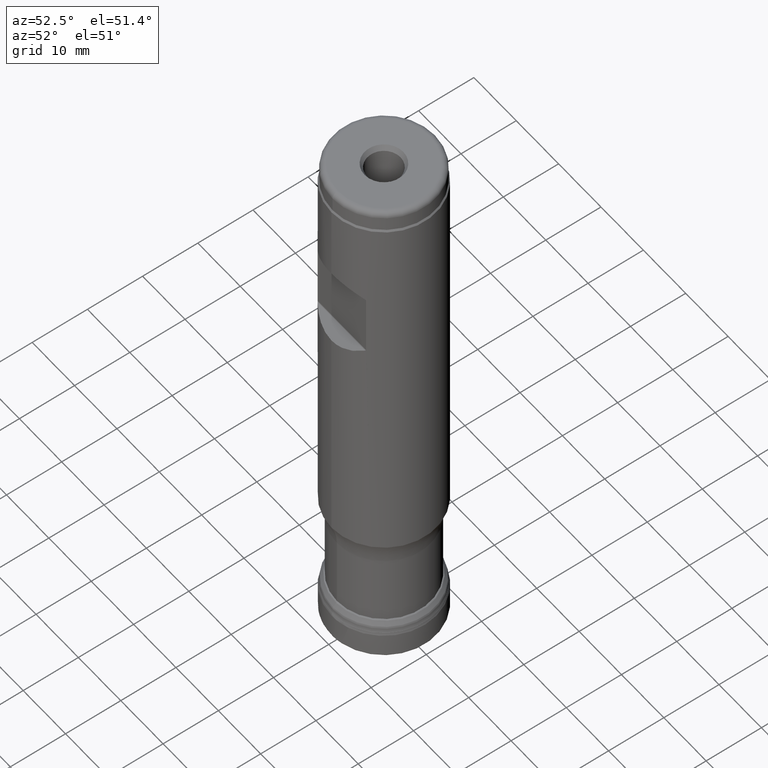
[diagram: clean part render]
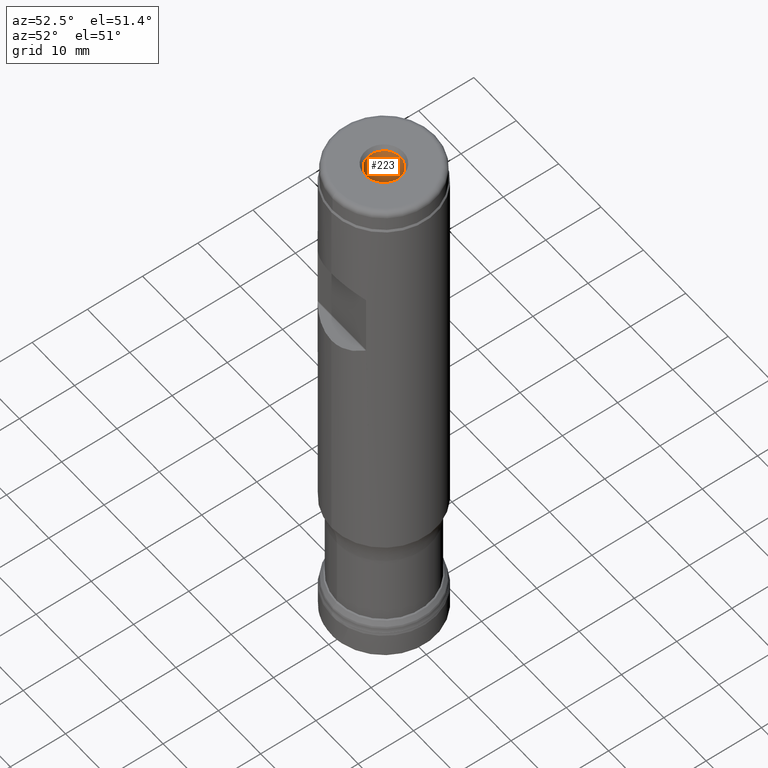
[diagram: same view with one face highlighted and labeled with its STEP entity id]
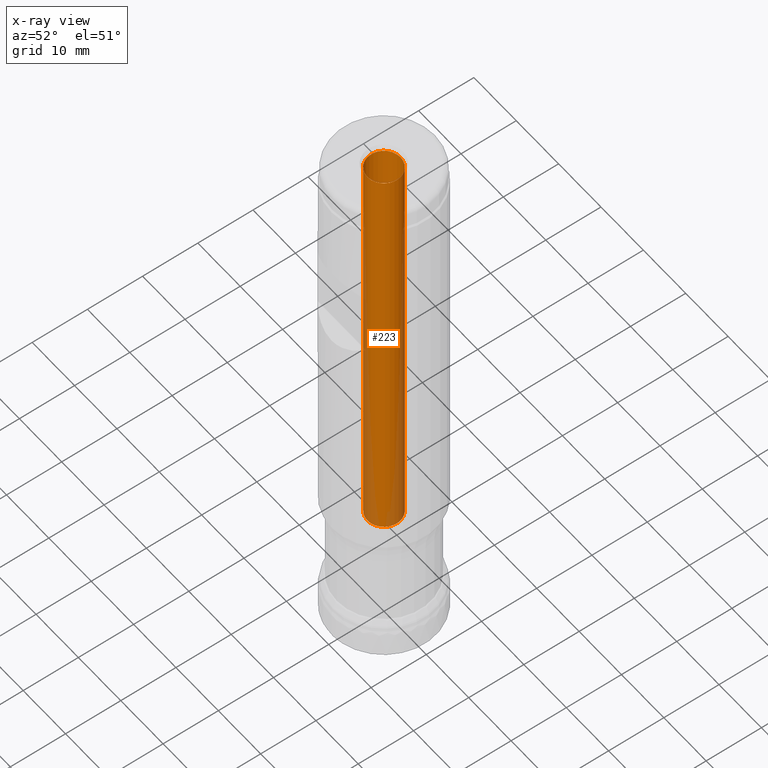
[diagram: x-ray of the same camera — body ghosted, the highlighted face saturated]
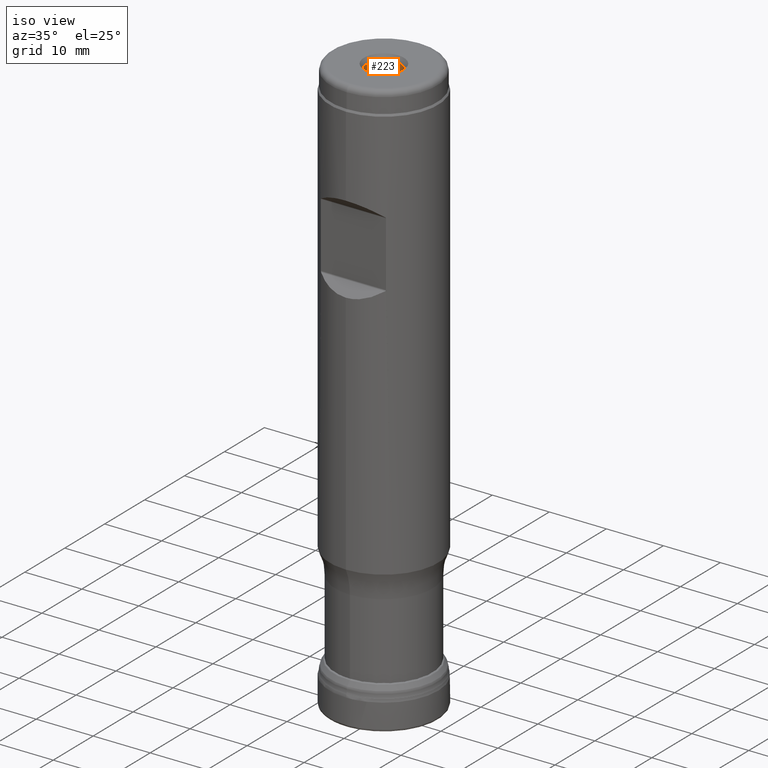
[diagram: same view with one face highlighted and labeled with its STEP entity id]
A machine part, auxiliary view. The second image highlights one B-rep face of the part: STEP entity #223.
The next image is the same camera in x-ray: the body ghosted, the highlighted face saturated — about 26% of this face is hidden behind the body in this view.
A second angle (iso view) of the same face is appended — the face is thin or edge-on in the first view.
In plain terms, the highlighted cylindrical surface (bore or boss wall) has radius 3 mm, axis along (0, -0, -1).
Its self-contained STEP definition (entity closure, byte-faithful):
#195=CYLINDRICAL_SURFACE('',#772,3.);
#223=ADVANCED_FACE('',(#295,#296),#195,.F.);
#295=FACE_BOUND('',#381,.T.);
#296=FACE_BOUND('',#382,.T.);
#381=EDGE_LOOP('',(#478));
#382=EDGE_LOOP('',(#479));
#478=ORIENTED_EDGE('',*,*,#623,.T.);
#479=ORIENTED_EDGE('',*,*,#622,.F.);
#570=VERTEX_POINT('',#1308);
#572=VERTEX_POINT('',#1312);
#622=EDGE_CURVE('',#570,#570,#668,.T.);
#623=EDGE_CURVE('',#572,#572,#669,.T.);
#668=CIRCLE('',#769,3.);
#669=CIRCLE('',#771,3.);
#769=AXIS2_PLACEMENT_3D('',#1307,#879,#880);
#771=AXIS2_PLACEMENT_3D('',#1311,#883,#884);
#772=AXIS2_PLACEMENT_3D('',#1313,#885,#886);
#879=DIRECTION('',(0.,1.17145536458252E-15,1.));
#880=DIRECTION('',(0.,1.,-1.15648231731787E-15));
#883=DIRECTION('',(0.,1.17145536458252E-15,1.));
#884=DIRECTION('',(0.,-1.,0.));
#885=DIRECTION('',(0.,-1.17145536458252E-15,-1.));
#886=DIRECTION('',(0.,1.,0.));
#1307=CARTESIAN_POINT('',(0.,2.53034358749825E-14,21.6));
#1308=CARTESIAN_POINT('',(0.,3.00000000000003,21.6));
#1311=CARTESIAN_POINT('',(0.,1.18005354936456E-13,100.733974596216));
#1312=CARTESIAN_POINT('',(0.,-2.99999999999988,100.733974596216));
#1313=CARTESIAN_POINT('',(0.,1.19019865041584E-13,101.6));